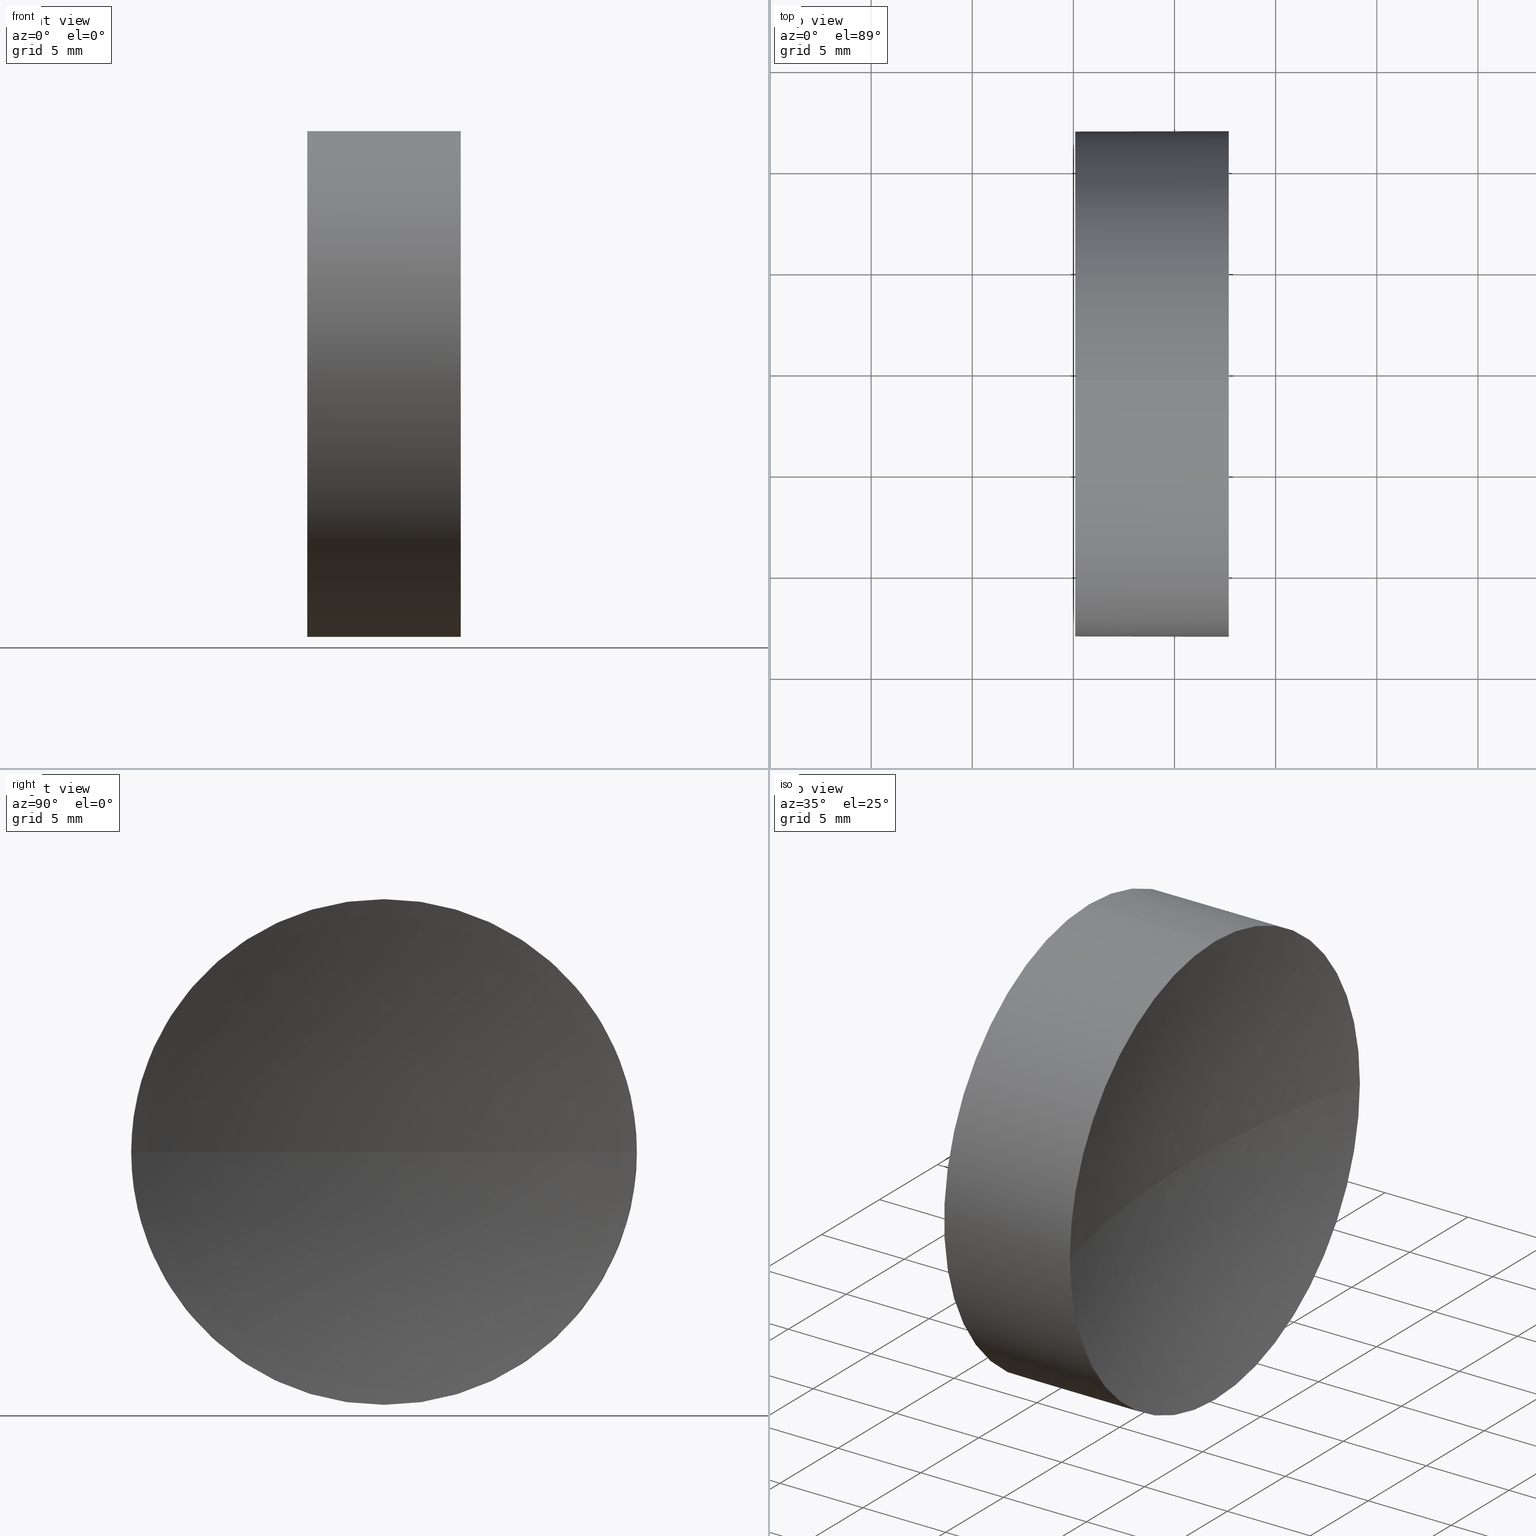
[diagram: canonical four-view strip — front | top / right | iso, engineering-drawing reading convention]
A machine part, canonical four-view strip (front | top / right | iso — engineering-drawing reading convention). The complete STEP part file that produces these views, byte-faithful:
ISO-10303-21;
HEADER;
FILE_DESCRIPTION (( 'STEP AP214' ),
    '1' );
FILE_NAME ('270021.STEP',
    '2019-07-22T06:10:58',
    ( '' ),
    ( '' ),
    'SwSTEP 2.0',
    'SolidWorks 2016',
    '' );
FILE_SCHEMA (( 'AUTOMOTIVE_DESIGN' ));
ENDSEC;

DATA;
#1 = SURFACE_STYLE_USAGE ( .BOTH. , #157 ) ;
#2 = DIRECTION ( 'NONE',  ( 0.0000000000000000000, 0.0000000000000000000, 1.000000000000000000 ) ) ;
#3 = AXIS2_PLACEMENT_3D ( 'NONE', #19, #115, #53 ) ;
#4 =( LENGTH_UNIT ( ) NAMED_UNIT ( * ) SI_UNIT ( .MILLI., .METRE. ) );
#5 = FILL_AREA_STYLE_COLOUR ( '', #76 ) ;
#6 = EDGE_CURVE ( 'NONE', #60, #18, #183, .T. ) ;
#7 = CIRCLE ( 'NONE', #128, 50.00000000000000000 ) ;
#8 = AXIS2_PLACEMENT_3D ( 'NONE', #148, #182, #145 ) ;
#9 = CARTESIAN_POINT ( 'NONE',  ( 122.6803637136740500, 69.37802112337243400, 0.0000000000000000000 ) ) ;
#10 = ORIENTED_EDGE ( 'NONE', *, *, #54, .T. ) ;
#11 = DIRECTION ( 'NONE',  ( 0.0000000000000000000, 0.0000000000000000000, -1.000000000000000000 ) ) ;
#12 = FACE_OUTER_BOUND ( 'NONE', #77, .T. ) ;
#13 = CIRCLE ( 'NONE', #121, 12.50000000000001100 ) ;
#14 = DIRECTION ( 'NONE',  ( 0.0000000000000000000, 0.0000000000000000000, 1.000000000000000000 ) ) ;
#15 = CARTESIAN_POINT ( 'NONE',  ( 115.0926555349195200, 69.37802112337243400, 0.0000000000000000000 ) ) ;
#16 = PRODUCT_DEFINITION ( 'δ֪', '', #112, #122 ) ;
#17 = ORIENTED_EDGE ( 'NONE', *, *, #185, .F. ) ;
#18 = VERTEX_POINT ( 'NONE', #107 ) ;
#19 = CARTESIAN_POINT ( 'NONE',  ( 171.0926555412667700, 69.37802112337243400, 0.0000000000000000000 ) ) ;
#20 = CIRCLE ( 'NONE', #48, 12.50000000000001100 ) ;
#21 = DIRECTION ( 'NONE',  ( 0.0000000000000000000, -1.224646799147353200E-016, 1.000000000000000000 ) ) ;
#22 = ORIENTED_EDGE ( 'NONE', *, *, #43, .T. ) ;
#23 = ORIENTED_EDGE ( 'NONE', *, *, #32, .T. ) ;
#24 = VERTEX_POINT ( 'NONE', #170 ) ;
#25 = SURFACE_STYLE_FILL_AREA ( #39 ) ;
#26 = ADVANCED_FACE ( 'NONE', ( #178 ), #33, .F. ) ;
#27 = ADVANCED_FACE ( 'NONE', ( #169 ), #105, .F. ) ;
#28 =( GEOMETRIC_REPRESENTATION_CONTEXT ( 3 ) GLOBAL_UNCERTAINTY_ASSIGNED_CONTEXT ( ( #135 ) ) GLOBAL_UNIT_ASSIGNED_CONTEXT ( ( #177, #85, #96 ) ) REPRESENTATION_CONTEXT ( 'NONE', 'WORKASPACE' ) );
#29 = VERTEX_POINT ( 'NONE', #124 ) ;
#30 = CARTESIAN_POINT ( 'NONE',  ( 115.0926555349195200, 69.37802112337243400, 0.0000000000000000000 ) ) ;
#31 = CARTESIAN_POINT ( 'NONE',  ( 122.6803637136740500, 69.37802112337243400, 0.0000000000000000000 ) ) ;
#32 = EDGE_CURVE ( 'NONE', #61, #132, #35, .T. ) ;
#33 = PLANE ( 'NONE',  #126 ) ;
#34 = DIRECTION ( 'NONE',  ( -1.000000000000000000, -0.0000000000000000000, -0.0000000000000000000 ) ) ;
#35 = LINE ( 'NONE', #62, #152 ) ;
#36 = DIRECTION ( 'NONE',  ( -1.000000000000000000, -0.0000000000000000000, -0.0000000000000000000 ) ) ;
#37 = PRODUCT_DEFINITION_SHAPE ( 'NONE', 'NONE',  #16 ) ;
#38 = CARTESIAN_POINT ( 'NONE',  ( 171.0926555412667700, 69.37802112337243400, 0.0000000000000000000 ) ) ;
#39 = FILL_AREA_STYLE ('',( #73 ) ) ;
#40 = APPLICATION_CONTEXT ( 'automotive_design' ) ;
#41 = EDGE_CURVE ( 'NONE', #60, #69, #140, .T. ) ;
#42 = ADVANCED_FACE ( 'NONE', ( #12 ), #72, .T. ) ;
#43 = EDGE_CURVE ( 'NONE', #69, #61, #20, .T. ) ;
#44 = DIRECTION ( 'NONE',  ( 0.0000000000000000000, 0.0000000000000000000, 1.000000000000000000 ) ) ;
#45 = CARTESIAN_POINT ( 'NONE',  ( 171.0926555412667700, 69.37802112337243400, 0.0000000000000000000 ) ) ;
#46 = CARTESIAN_POINT ( 'NONE',  ( 122.6803637136740500, 69.37802112337243400, -12.50000000000000900 ) ) ;
#47 =( NAMED_UNIT ( * ) SI_UNIT ( $, .STERADIAN. ) SOLID_ANGLE_UNIT ( ) );
#48 = AXIS2_PLACEMENT_3D ( 'NONE', #31, #158, #44 ) ;
#49 = DIRECTION ( 'NONE',  ( 1.000000000000000000, 0.0000000000000000000, 0.0000000000000000000 ) ) ;
#50 = ORIENTED_EDGE ( 'NONE', *, *, #6, .F. ) ;
#51 = DIRECTION ( 'NONE',  ( 0.0000000000000000000, -1.000000000000000000, -1.224646799147353200E-016 ) ) ;
#52 = CIRCLE ( 'NONE', #8, 50.00000000000000000 ) ;
#53 = DIRECTION ( 'NONE',  ( 0.0000000000000000000, -1.000000000000000000, 0.0000000000000000000 ) ) ;
#54 = EDGE_CURVE ( 'NONE', #61, #29, #101, .T. ) ;
#55 = PRESENTATION_LAYER_ASSIGNMENT (  '', '', ( #71 ) ) ;
#56 = ORIENTED_EDGE ( 'NONE', *, *, #137, .T. ) ;
#57 = FACE_OUTER_BOUND ( 'NONE', #117, .T. ) ;
#58 = CIRCLE ( 'NONE', #74, 12.49999999999999600 ) ;
#59 = PRESENTATION_LAYER_ASSIGNMENT (  '', '', ( #90 ) ) ;
#60 = VERTEX_POINT ( 'NONE', #84 ) ;
#61 = VERTEX_POINT ( 'NONE', #46 ) ;
#62 = CARTESIAN_POINT ( 'NONE',  ( 108.9851430021651000, 69.37802112337243400, -12.50000000000000400 ) ) ;
#63 = ADVANCED_BREP_SHAPE_REPRESENTATION ( '270021', ( #97, #91 ), #28 ) ;
#64 = DIRECTION ( 'NONE',  ( 0.0000000000000000000, 0.0000000000000000000, 1.000000000000000000 ) ) ;
#65 = CARTESIAN_POINT ( 'NONE',  ( 108.9851430021651000, 69.37802112337243400, 0.0000000000000000000 ) ) ;
#66 = AXIS2_PLACEMENT_3D ( 'NONE', #92, #34, #109 ) ;
#67 = SURFACE_STYLE_USAGE ( .BOTH. , #129 ) ;
#68 = EDGE_CURVE ( 'NONE', #132, #18, #180, .T. ) ;
#69 = VERTEX_POINT ( 'NONE', #155 ) ;
#70 = EDGE_LOOP ( 'NONE', ( #150, #94 ) ) ;
#71 = STYLED_ITEM ( 'NONE', ( #146 ), #97 ) ;
#72 = CYLINDRICAL_SURFACE ( 'NONE', #66, 12.50000000000000400 ) ;
#73 = FILL_AREA_STYLE_COLOUR ( '', #113 ) ;
#74 = AXIS2_PLACEMENT_3D ( 'NONE', #15, #102, #64 ) ;
#75 = ORIENTED_EDGE ( 'NONE', *, *, #127, .F. ) ;
#76 = COLOUR_RGB ( '',1.000000000000000000, 1.000000000000000000, 1.000000000000000000 ) ;
#77 = EDGE_LOOP ( 'NONE', ( #143, #10, #171, #144, #174 ) ) ;
#78 = ADVANCED_FACE ( 'NONE', ( #57 ), #175, .T. ) ;
#79 = DIRECTION ( 'NONE',  ( 1.000000000000000000, 0.0000000000000000000, 0.0000000000000000000 ) ) ;
#80 = DIRECTION ( 'NONE',  ( 0.0000000000000000000, 0.0000000000000000000, 1.000000000000000000 ) ) ;
#81 = DIRECTION ( 'NONE',  ( 0.0000000000000000000, 0.0000000000000000000, 1.000000000000000000 ) ) ;
#82 = MECHANICAL_DESIGN_GEOMETRIC_PRESENTATION_REPRESENTATION (  '', ( #71 ), #142 ) ;
#83 = DIRECTION ( 'NONE',  ( -1.000000000000000000, -0.0000000000000000000, -0.0000000000000000000 ) ) ;
#84 = CARTESIAN_POINT ( 'NONE',  ( 122.6803637136740500, 69.37802112337243400, 12.50000000000000900 ) ) ;
#85 =( NAMED_UNIT ( * ) PLANE_ANGLE_UNIT ( ) SI_UNIT ( $, .RADIAN. ) );
#86 = APPLICATION_PROTOCOL_DEFINITION ( 'draft international standard', 'automotive_design', 1998, #40 ) ;
#87 = SHAPE_DEFINITION_REPRESENTATION ( #37, #63 ) ;
#88 = APPLICATION_CONTEXT ( 'automotive_design' ) ;
#89 = AXIS2_PLACEMENT_3D ( 'NONE', #45, #80, #136 ) ;
#90 = STYLED_ITEM ( 'NONE', ( #118 ), #63 ) ;
#91 = AXIS2_PLACEMENT_3D ( 'NONE', #176, #163, #49 ) ;
#92 = CARTESIAN_POINT ( 'NONE',  ( 108.9851430021651000, 69.37802112337243400, 0.0000000000000000000 ) ) ;
#93 = DIRECTION ( 'NONE',  ( -1.000000000000000000, -0.0000000000000000000, -0.0000000000000000000 ) ) ;
#94 = ORIENTED_EDGE ( 'NONE', *, *, #68, .T. ) ;
#95 = CARTESIAN_POINT ( 'NONE',  ( 122.6803637136740500, 69.37802112337243400, 0.0000000000000000000 ) ) ;
#96 =( NAMED_UNIT ( * ) SI_UNIT ( $, .STERADIAN. ) SOLID_ANGLE_UNIT ( ) );
#97 = MANIFOLD_SOLID_BREP ( '��ת1', #168 ) ;
#98 = AXIS2_PLACEMENT_3D ( 'NONE', #119, #130, #14 ) ;
#99 = PRODUCT_RELATED_PRODUCT_CATEGORY ( 'part', '', ( #164 ) ) ;
#100 = ORIENTED_EDGE ( 'NONE', *, *, #159, .F. ) ;
#101 = CIRCLE ( 'NONE', #149, 12.50000000000001100 ) ;
#102 = DIRECTION ( 'NONE',  ( -1.000000000000000000, -0.0000000000000000000, -0.0000000000000000000 ) ) ;
#103 = EDGE_LOOP ( 'NONE', ( #104, #166, #110, #138 ) ) ;
#104 = ORIENTED_EDGE ( 'NONE', *, *, #43, .F. ) ;
#105 = SPHERICAL_SURFACE ( 'NONE', #89, 50.00000000000000000 ) ;
#106 = ADVANCED_FACE ( 'NONE', ( #147 ), #133, .F. ) ;
#107 = CARTESIAN_POINT ( 'NONE',  ( 115.0926555349195200, 69.37802112337243400, 12.49999999999999600 ) ) ;
#108 = EDGE_LOOP ( 'NONE', ( #100, #165, #17, #56 ) ) ;
#109 = DIRECTION ( 'NONE',  ( 0.0000000000000000000, 0.0000000000000000000, 1.000000000000000000 ) ) ;
#110 = ORIENTED_EDGE ( 'NONE', *, *, #137, .F. ) ;
#111 = UNCERTAINTY_MEASURE_WITH_UNIT (LENGTH_MEASURE( 1.000000000000000100E-005 ), #162, 'distance_accuracy_value', 'NONE');
#112 = PRODUCT_DEFINITION_FORMATION_WITH_SPECIFIED_SOURCE ( '�κ�', '', #164, .NOT_KNOWN. ) ;
#113 = COLOUR_RGB ( '',1.000000000000000000, 1.000000000000000000, 1.000000000000000000 ) ;
#114 = PRODUCT_CONTEXT ( 'NONE', #40, 'mechanical' ) ;
#115 = DIRECTION ( 'NONE',  ( 0.0000000000000000000, 0.0000000000000000000, 1.000000000000000000 ) ) ;
#116 =( NAMED_UNIT ( * ) PLANE_ANGLE_UNIT ( ) SI_UNIT ( $, .RADIAN. ) );
#117 = EDGE_LOOP ( 'NONE', ( #22, #23, #75, #50, #151 ) ) ;
#118 = PRESENTATION_STYLE_ASSIGNMENT (( #67 ) ) ;
#119 = CARTESIAN_POINT ( 'NONE',  ( 115.0926555349195200, 69.37802112337243400, 0.0000000000000000000 ) ) ;
#120 =( NAMED_UNIT ( * ) SI_UNIT ( $, .STERADIAN. ) SOLID_ANGLE_UNIT ( ) );
#121 = AXIS2_PLACEMENT_3D ( 'NONE', #95, #36, #2 ) ;
#122 = PRODUCT_DEFINITION_CONTEXT ( 'detailed design', #88, 'design' ) ;
#123 = CARTESIAN_POINT ( 'NONE',  ( 108.9851430021651000, 69.37802112337243400, 12.50000000000000400 ) ) ;
#124 = CARTESIAN_POINT ( 'NONE',  ( 122.6803637136740500, 56.87802112337242700, 0.0000000000000000000 ) ) ;
#125 = DIRECTION ( 'NONE',  ( -1.000000000000000000, -0.0000000000000000000, -0.0000000000000000000 ) ) ;
#126 = AXIS2_PLACEMENT_3D ( 'NONE', #30, #79, #11 ) ;
#127 = EDGE_CURVE ( 'NONE', #18, #132, #58, .T. ) ;
#128 = AXIS2_PLACEMENT_3D ( 'NONE', #38, #21, #51 ) ;
#129 = SURFACE_SIDE_STYLE ('',( #179 ) ) ;
#130 = DIRECTION ( 'NONE',  ( -1.000000000000000000, -0.0000000000000000000, -0.0000000000000000000 ) ) ;
#131 = MECHANICAL_DESIGN_GEOMETRIC_PRESENTATION_REPRESENTATION (  '', ( #90 ), #184 ) ;
#132 = VERTEX_POINT ( 'NONE', #161 ) ;
#133 = SPHERICAL_SURFACE ( 'NONE', #3, 50.00000000000000000 ) ;
#134 = AXIS2_PLACEMENT_3D ( 'NONE', #172, #83, #81 ) ;
#135 = UNCERTAINTY_MEASURE_WITH_UNIT (LENGTH_MEASURE( 1.000000000000000100E-005 ), #177, 'distance_accuracy_value', 'NONE');
#136 = DIRECTION ( 'NONE',  ( 0.0000000000000000000, -1.000000000000000000, 0.0000000000000000000 ) ) ;
#137 = EDGE_CURVE ( 'NONE', #29, #24, #52, .T. ) ;
#138 = ORIENTED_EDGE ( 'NONE', *, *, #54, .F. ) ;
#139 = DIRECTION ( 'NONE',  ( 0.0000000000000000000, 0.0000000000000000000, 1.000000000000000000 ) ) ;
#140 = CIRCLE ( 'NONE', #134, 12.50000000000001100 ) ;
#141 =( NAMED_UNIT ( * ) PLANE_ANGLE_UNIT ( ) SI_UNIT ( $, .RADIAN. ) );
#142 =( GEOMETRIC_REPRESENTATION_CONTEXT ( 3 ) GLOBAL_UNCERTAINTY_ASSIGNED_CONTEXT ( ( #111 ) ) GLOBAL_UNIT_ASSIGNED_CONTEXT ( ( #162, #116, #120 ) ) REPRESENTATION_CONTEXT ( 'NONE', 'WORKASPACE' ) );
#143 = ORIENTED_EDGE ( 'NONE', *, *, #32, .F. ) ;
#144 = ORIENTED_EDGE ( 'NONE', *, *, #6, .T. ) ;
#145 = DIRECTION ( 'NONE',  ( -1.000000000000000000, 0.0000000000000000000, 0.0000000000000000000 ) ) ;
#146 = PRESENTATION_STYLE_ASSIGNMENT (( #1 ) ) ;
#147 = FACE_OUTER_BOUND ( 'NONE', #103, .T. ) ;
#148 = CARTESIAN_POINT ( 'NONE',  ( 171.0926555412667700, 69.37802112337243400, 0.0000000000000000000 ) ) ;
#149 = AXIS2_PLACEMENT_3D ( 'NONE', #9, #93, #139 ) ;
#150 = ORIENTED_EDGE ( 'NONE', *, *, #127, .T. ) ;
#151 = ORIENTED_EDGE ( 'NONE', *, *, #41, .T. ) ;
#152 = VECTOR ( 'NONE', #160, 1000.000000000000000 ) ;
#153 = VECTOR ( 'NONE', #186, 1000.000000000000000 ) ;
#154 = AXIS2_PLACEMENT_3D ( 'NONE', #65, #125, #156 ) ;
#155 = CARTESIAN_POINT ( 'NONE',  ( 122.6803637136740500, 81.87802112337244900, 1.530808498934192700E-015 ) ) ;
#156 = DIRECTION ( 'NONE',  ( 0.0000000000000000000, 0.0000000000000000000, 1.000000000000000000 ) ) ;
#157 = SURFACE_SIDE_STYLE ('',( #25 ) ) ;
#158 = DIRECTION ( 'NONE',  ( -1.000000000000000000, -0.0000000000000000000, -0.0000000000000000000 ) ) ;
#159 = EDGE_CURVE ( 'NONE', #69, #24, #7, .T. ) ;
#160 = DIRECTION ( 'NONE',  ( -1.000000000000000000, -0.0000000000000000000, -0.0000000000000000000 ) ) ;
#161 = CARTESIAN_POINT ( 'NONE',  ( 115.0926555349195200, 69.37802112337243400, -12.49999999999999600 ) ) ;
#162 =( LENGTH_UNIT ( ) NAMED_UNIT ( * ) SI_UNIT ( .MILLI., .METRE. ) );
#163 = DIRECTION ( 'NONE',  ( 0.0000000000000000000, 0.0000000000000000000, 1.000000000000000000 ) ) ;
#164 = PRODUCT ( '270021', '270021', '', ( #114 ) ) ;
#165 = ORIENTED_EDGE ( 'NONE', *, *, #41, .F. ) ;
#166 = ORIENTED_EDGE ( 'NONE', *, *, #159, .T. ) ;
#167 = FILL_AREA_STYLE ('',( #5 ) ) ;
#168 = CLOSED_SHELL ( 'NONE', ( #78, #106, #27, #42, #26 ) ) ;
#169 = FACE_OUTER_BOUND ( 'NONE', #108, .T. ) ;
#170 = CARTESIAN_POINT ( 'NONE',  ( 121.0926555412667700, 69.37802112337243400, 0.0000000000000000000 ) ) ;
#171 = ORIENTED_EDGE ( 'NONE', *, *, #185, .T. ) ;
#172 = CARTESIAN_POINT ( 'NONE',  ( 122.6803637136740500, 69.37802112337243400, 0.0000000000000000000 ) ) ;
#173 = UNCERTAINTY_MEASURE_WITH_UNIT (LENGTH_MEASURE( 1.000000000000000100E-005 ), #4, 'distance_accuracy_value', 'NONE');
#174 = ORIENTED_EDGE ( 'NONE', *, *, #68, .F. ) ;
#175 = CYLINDRICAL_SURFACE ( 'NONE', #154, 12.50000000000000400 ) ;
#176 = CARTESIAN_POINT ( 'NONE',  ( 0.0000000000000000000, 0.0000000000000000000, 0.0000000000000000000 ) ) ;
#177 =( LENGTH_UNIT ( ) NAMED_UNIT ( * ) SI_UNIT ( .MILLI., .METRE. ) );
#178 = FACE_OUTER_BOUND ( 'NONE', #70, .T. ) ;
#179 = SURFACE_STYLE_FILL_AREA ( #167 ) ;
#180 = CIRCLE ( 'NONE', #98, 12.49999999999999600 ) ;
#181 = APPLICATION_PROTOCOL_DEFINITION ( 'draft international standard', 'automotive_design', 1998, #88 ) ;
#182 = DIRECTION ( 'NONE',  ( 0.0000000000000000000, 0.0000000000000000000, -1.000000000000000000 ) ) ;
#183 = LINE ( 'NONE', #123, #153 ) ;
#184 =( GEOMETRIC_REPRESENTATION_CONTEXT ( 3 ) GLOBAL_UNCERTAINTY_ASSIGNED_CONTEXT ( ( #173 ) ) GLOBAL_UNIT_ASSIGNED_CONTEXT ( ( #4, #141, #47 ) ) REPRESENTATION_CONTEXT ( 'NONE', 'WORKASPACE' ) );
#185 = EDGE_CURVE ( 'NONE', #29, #60, #13, .T. ) ;
#186 = DIRECTION ( 'NONE',  ( -1.000000000000000000, -0.0000000000000000000, -0.0000000000000000000 ) ) ;
ENDSEC;
END-ISO-10303-21;
